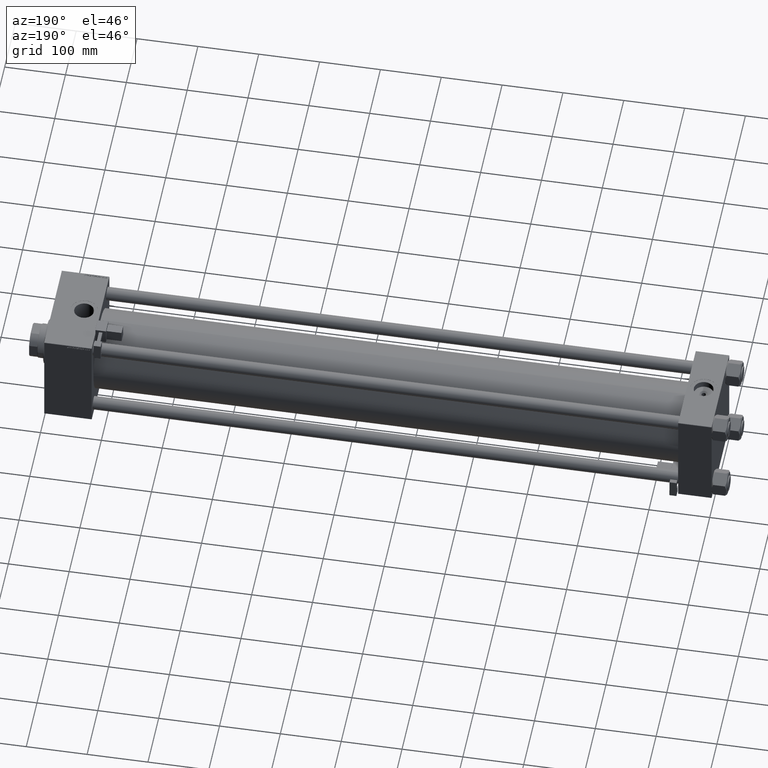
[diagram: clean part render]
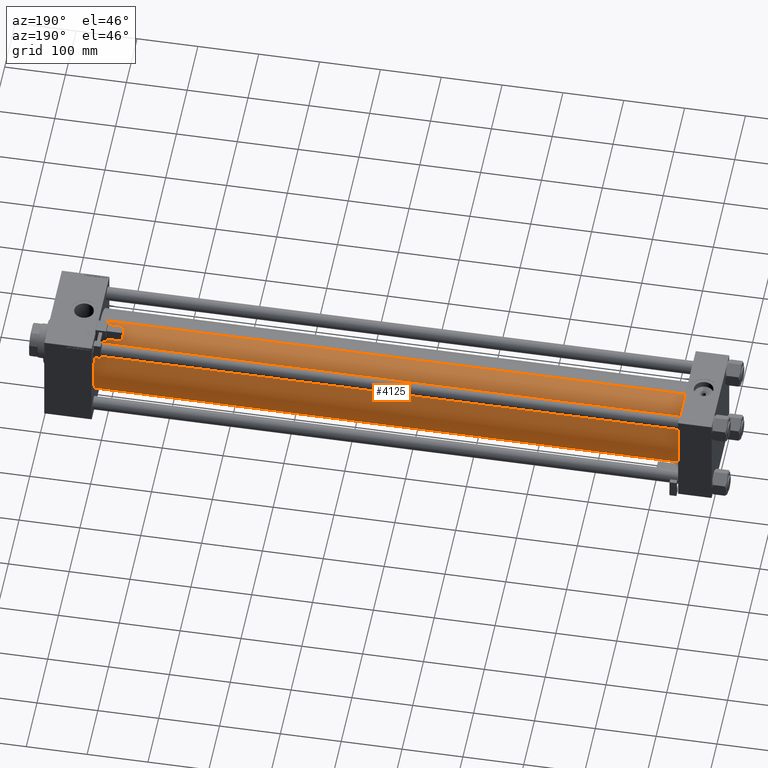
[diagram: same view with one face highlighted and labeled with its STEP entity id]
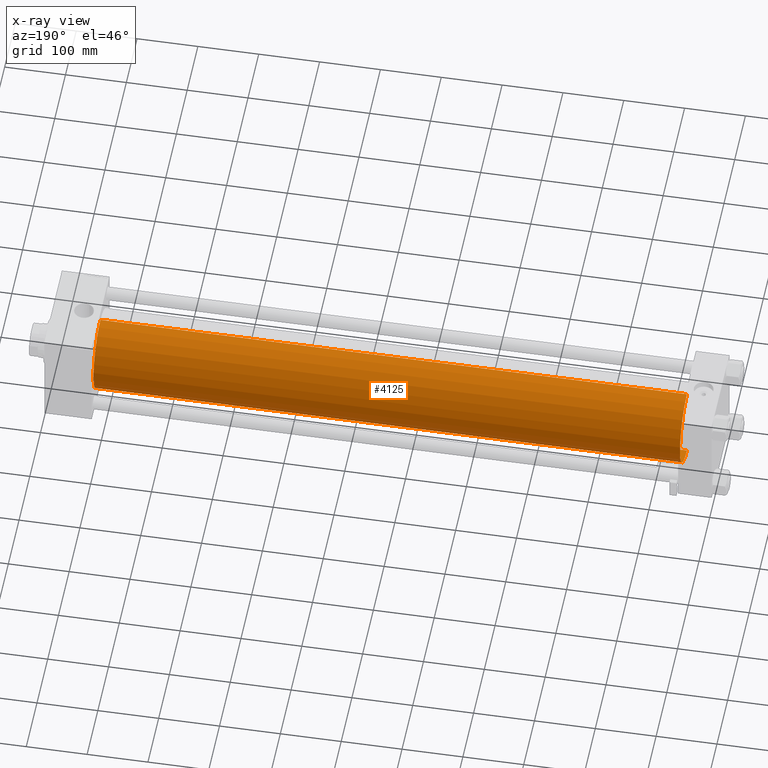
[diagram: x-ray of the same camera — body ghosted, the highlighted face saturated]
A machine part, auxiliary view. The second image highlights one B-rep face of the part: STEP entity #4125.
The next image is the same camera in x-ray: the body ghosted, the highlighted face saturated — about 0% of this face is hidden behind the body in this view.
In plain terms, the highlighted cylindrical surface (partial cylindrical patch) has radius 65.5 mm, axis along (-1, -0, -0).
Its self-contained STEP definition (entity closure, byte-faithful):
#1770 = EDGE_CURVE ( 'NONE', #22885, #23824, #9810, .T. ) ;
#2325 = CARTESIAN_POINT ( 'NONE',  ( 55.00000000000004974, 5.419351320449954973E-15, -65.50000000000001421 ) ) ;
#2595 = LINE ( 'NONE', #31784, #10466 ) ;
#3268 = ORIENTED_EDGE ( 'NONE', *, *, #1770, .T. ) ;
#4125 = ADVANCED_FACE ( 'NONE', ( #12926 ), #29515, .T. ) ;
#4563 = CARTESIAN_POINT ( 'NONE',  ( 1018.999999999999886, -2.602085213965210642E-15, 65.50000000000001421 ) ) ;
#4806 = VERTEX_POINT ( 'NONE', #45216 ) ;
#5142 = DIRECTION ( 'NONE',  ( 0.000000000000000000, 0.000000000000000000, 1.000000000000000000 ) ) ;
#8579 = DIRECTION ( 'NONE',  ( 1.000000000000000000, 0.000000000000000000, 0.000000000000000000 ) ) ;
#8905 = EDGE_CURVE ( 'NONE', #22885, #24319, #37941, .T. ) ;
#9810 = LINE ( 'NONE', #10605, #28266 ) ;
#10466 = VECTOR ( 'NONE', #27505, 1000.000000000000000 ) ;
#10605 = CARTESIAN_POINT ( 'NONE',  ( 1018.999999999999886, 5.419351320449954973E-15, -65.50000000000001421 ) ) ;
#11774 = ORIENTED_EDGE ( 'NONE', *, *, #23373, .T. ) ;
#12926 = FACE_OUTER_BOUND ( 'NONE', #33378, .T. ) ;
#13337 = ORIENTED_EDGE ( 'NONE', *, *, #51601, .F. ) ;
#16678 = CARTESIAN_POINT ( 'NONE',  ( 1018.999999999999886, -2.602085213965210642E-15, 0.000000000000000000 ) ) ;
#18889 = DIRECTION ( 'NONE',  ( -1.000000000000000000, -0.000000000000000000, -0.000000000000000000 ) ) ;
#22885 = VERTEX_POINT ( 'NONE', #42159 ) ;
#23373 = EDGE_CURVE ( 'NONE', #23824, #4806, #48245, .T. ) ;
#23824 = VERTEX_POINT ( 'NONE', #2325 ) ;
#24319 = VERTEX_POINT ( 'NONE', #4563 ) ;
#24640 = CARTESIAN_POINT ( 'NONE',  ( 55.00000000000004974, -2.602085213965210642E-15, 0.000000000000000000 ) ) ;
#25178 = DIRECTION ( 'NONE',  ( 0.000000000000000000, 0.000000000000000000, -1.000000000000000000 ) ) ;
#27505 = DIRECTION ( 'NONE',  ( -1.000000000000000000, -0.000000000000000000, -0.000000000000000000 ) ) ;
#28266 = VECTOR ( 'NONE', #18889, 1000.000000000000000 ) ;
#29181 = CARTESIAN_POINT ( 'NONE',  ( 1018.999999999999886, -2.602085213965210642E-15, 0.000000000000000000 ) ) ;
#29515 = CYLINDRICAL_SURFACE ( 'NONE', #42868, 65.50000000000001421 ) ;
#31114 = AXIS2_PLACEMENT_3D ( 'NONE', #29181, #8579, #25178 ) ;
#31784 = CARTESIAN_POINT ( 'NONE',  ( 1018.999999999999886, -2.602085213965210642E-15, 65.50000000000001421 ) ) ;
#32401 = DIRECTION ( 'NONE',  ( 0.000000000000000000, 0.000000000000000000, 1.000000000000000000 ) ) ;
#32829 = AXIS2_PLACEMENT_3D ( 'NONE', #24640, #49006, #32401 ) ;
#33378 = EDGE_LOOP ( 'NONE', ( #40662, #3268, #11774, #13337 ) ) ;
#37941 = CIRCLE ( 'NONE', #31114, 65.50000000000001421 ) ;
#40662 = ORIENTED_EDGE ( 'NONE', *, *, #8905, .F. ) ;
#42159 = CARTESIAN_POINT ( 'NONE',  ( 1018.999999999999886, 5.419351320449954973E-15, -65.50000000000001421 ) ) ;
#42868 = AXIS2_PLACEMENT_3D ( 'NONE', #16678, #49074, #5142 ) ;
#45216 = CARTESIAN_POINT ( 'NONE',  ( 55.00000000000004974, -2.602085213965210642E-15, 65.50000000000001421 ) ) ;
#48245 = CIRCLE ( 'NONE', #32829, 65.50000000000001421 ) ;
#49006 = DIRECTION ( 'NONE',  ( 1.000000000000000000, -0.000000000000000000, -0.000000000000000000 ) ) ;
#49074 = DIRECTION ( 'NONE',  ( -1.000000000000000000, -0.000000000000000000, -0.000000000000000000 ) ) ;
#51601 = EDGE_CURVE ( 'NONE', #24319, #4806, #2595, .T. ) ;